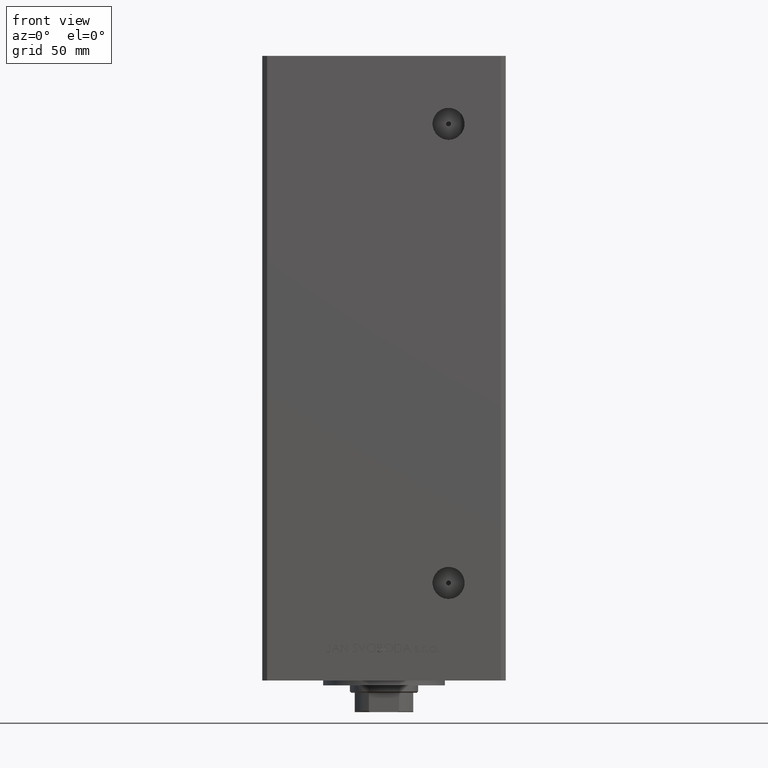
[diagram: clean part render]
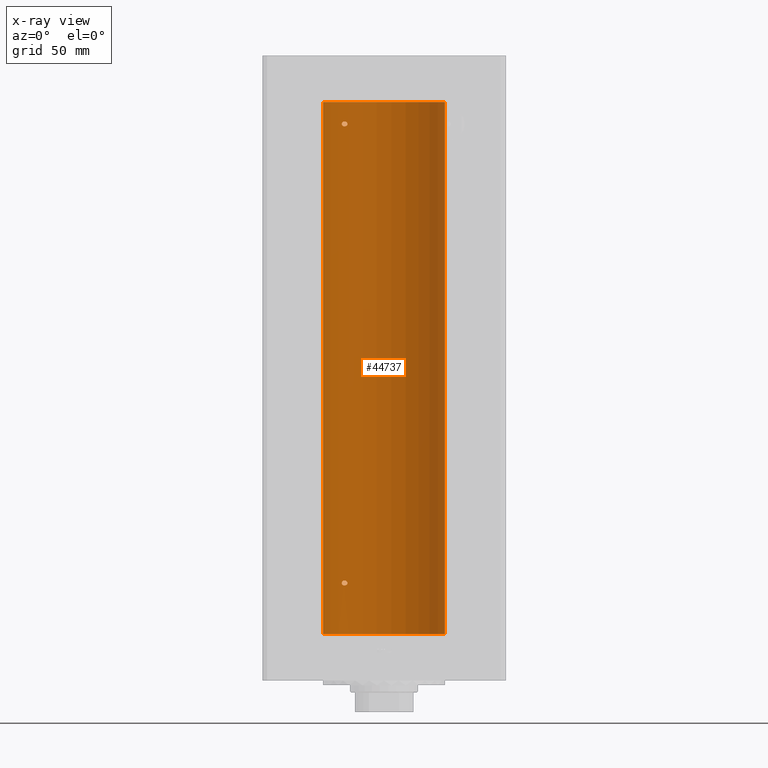
[diagram: x-ray — body ghosted, one internal face saturated and labeled with its STEP entity id]
A machine part, front view, then the same camera in x-ray: the body is ghosted and one INTERNAL B-rep face — a face not visible from any outside direction — is saturated and labeled: STEP entity #44737.
In plain terms, the highlighted cylindrical surface (partial cylindrical patch) has radius 25 mm, axis along (-0, -0, -1).
Its self-contained STEP definition (entity closure, byte-faithful):
#249 = VECTOR ( 'NONE', #34280, 1000.000000000000000 ) ;
#484 = LINE ( 'NONE', #4807, #43488 ) ;
#646 = EDGE_CURVE ( 'NONE', #3768, #21552, #14643, .T. ) ;
#944 = DIRECTION ( 'NONE',  ( -0.000000000000000000, -0.000000000000000000, -1.000000000000000000 ) ) ;
#1129 = ORIENTED_EDGE ( 'NONE', *, *, #35572, .T. ) ;
#1411 = CARTESIAN_POINT ( 'NONE',  ( -14.99999999999999112, 20.00000000000000711, 209.5000000000000000 ) ) ;
#2569 = AXIS2_PLACEMENT_3D ( 'NONE', #16236, #31695, #8898 ) ;
#2715 = CARTESIAN_POINT ( 'NONE',  ( -15.00000000000021316, 19.99999999999998934, 21.08403880362416061 ) ) ;
#2872 = CARTESIAN_POINT ( 'NONE',  ( -14.99999999999999112, 20.00000000000000711, 209.5000000000000000 ) ) ;
#2968 = CARTESIAN_POINT ( 'NONE',  ( -16.46913072925702792, 18.81168496547891777, 210.5057775588113884 ) ) ;
#3132 = CARTESIAN_POINT ( 'NONE',  ( -17.15234217094406333, 18.18812579706696653, 208.8965730437749073 ) ) ;
#3211 = CARTESIAN_POINT ( 'NONE',  ( -17.05007833789892047, 18.28384926940287869, 210.2013739990121337 ) ) ;
#3482 = CARTESIAN_POINT ( 'NONE',  ( -15.34666241858321634, 19.73581294411414078, 20.31212246053760495 ) ) ;
#3768 = VERTEX_POINT ( 'NONE', #8843 ) ;
#3977 = CARTESIAN_POINT ( 'NONE',  ( -17.15234217094410596, 18.18812579706693100, 20.39657304377494640 ) ) ;
#4224 = CARTESIAN_POINT ( 'NONE',  ( -16.46844752485328911, 18.81003400474351039, 20.01154431903891862 ) ) ;
#4807 = CARTESIAN_POINT ( 'NONE',  ( 25.00000000000000000, 3.061616997868383043E-15, 218.5000000000000000 ) ) ;
#5443 = EDGE_CURVE ( 'NONE', #41125, #21438, #10636, .T. ) ;
#5755 = FACE_BOUND ( 'NONE', #21511, .T. ) ;
#6655 = CARTESIAN_POINT ( 'NONE',  ( -15.58164749401199956, 19.55082150006405328, 208.6566780726851391 ) ) ;
#6989 = CARTESIAN_POINT ( 'NONE',  ( -15.58230678163764260, 19.55030131031895380, 21.84373948670293331 ) ) ;
#6990 = CARTESIAN_POINT ( 'NONE',  ( -16.08745393861402917, 19.13692152169251059, 210.4965015099869277 ) ) ;
#7230 = CARTESIAN_POINT ( 'NONE',  ( -17.14593038898733113, 18.19399314418732061, 21.59594488319649130 ) ) ;
#7355 = EDGE_CURVE ( 'NONE', #10063, #19252, #12406, .T. ) ;
#7501 = CARTESIAN_POINT ( 'NONE',  ( -17.34935157289749696, 17.99999999999998579, 20.82899836042580688 ) ) ;
#7731 = CARTESIAN_POINT ( 'NONE',  ( -15.34624284195510135, 19.73614442075936992, 21.68761853185130306 ) ) ;
#7998 = CARTESIAN_POINT ( 'NONE',  ( -15.58164749401203686, 19.55082150006403907, 20.15667807268518885 ) ) ;
#8843 = CARTESIAN_POINT ( 'NONE',  ( 25.00000000000000000, 3.061616997868383043E-15, 218.5000000000000000 ) ) ;
#8898 = DIRECTION ( 'NONE',  ( 1.000000000000000000, 0.000000000000000000, 0.000000000000000000 ) ) ;
#9292 = CARTESIAN_POINT ( 'NONE',  ( 0.000000000000000000, 0.000000000000000000, 218.5000000000000000 ) ) ;
#9802 = B_SPLINE_CURVE_WITH_KNOTS ( 'NONE', 3,
 ( #13353, #2715, #44265, #40451, #37642, #19132, #7731, #6989, #41700, #38635, #18880, #34813, #15074, #22449, #10777, #7230, #37891, #50032, #49782, #26490 ),
 .UNSPECIFIED., .F., .F.,
 ( 4, 2, 2, 2, 2, 2, 2, 2, 2, 4 ),
 ( 0.004032696862986568168, 0.004284699222246932983, 0.004536701581507298665, 0.005040706300028030031, 0.005544711018548761396, 0.006048715737069493628, 0.007056725174110963297, 0.007308727533371326378, 0.007560729892631690326, 0.008064734611152429497 ),
 .UNSPECIFIED. ) ;
#10063 = VERTEX_POINT ( 'NONE', #26613 ) ;
#10290 = CARTESIAN_POINT ( 'NONE',  ( -14.99999999999999112, 20.00000000000000711, 209.5000000000000000 ) ) ;
#10533 = CARTESIAN_POINT ( 'NONE',  ( -15.70535969280552280, 19.45169171760802485, 210.3989607721124173 ) ) ;
#10636 = CIRCLE ( 'NONE', #17934, 25.00000000000000000 ) ;
#10685 = EDGE_CURVE ( 'NONE', #19252, #10063, #9802, .T. ) ;
#10777 = CARTESIAN_POINT ( 'NONE',  ( -17.05007833789895955, 18.28384926940283606, 21.70137399901213371 ) ) ;
#10943 = CARTESIAN_POINT ( 'NONE',  ( -15.10490010356605595, 19.92096840819819903, 209.1037666713224894 ) ) ;
#11431 = CARTESIAN_POINT ( 'NONE',  ( -16.34293146994552259, 18.91921593628409681, 208.4973425906725879 ) ) ;
#11793 = CARTESIAN_POINT ( 'NONE',  ( -17.30269557861145202, 18.04515136187498570, 20.66604208175573376 ) ) ;
#12122 = DIRECTION ( 'NONE',  ( -0.000000000000000000, -0.000000000000000000, -1.000000000000000000 ) ) ;
#12406 = B_SPLINE_CURVE_WITH_KNOTS ( 'NONE', 3,
 ( #41466, #7501, #11793, #3977, #46521, #49556, #38152, #4224, #27256, #42719, #42957, #42215, #7998, #3482, #42464, #35089, #23453, #45771, #41977, #14841 ),
 .UNSPECIFIED., .F., .F.,
 ( 4, 2, 2, 2, 2, 2, 2, 2, 2, 4 ),
 ( 2.011680962688586771E-16, 0.0005040871078734975291, 0.001008174215746794047, 0.001512261323620090565, 0.002016348431493386866, 0.002520435539366683384, 0.003024522647239979902, 0.003528609755113272951, 0.003780653309049920342, 0.004032696862986568168 ),
 .UNSPECIFIED. ) ;
#13345 = FACE_OUTER_BOUND ( 'NONE', #28965, .T. ) ;
#13353 = CARTESIAN_POINT ( 'NONE',  ( -15.00000000000002842, 19.99999999999998224, 20.99999999999998934 ) ) ;
#13446 = EDGE_CURVE ( 'NONE', #31719, #48114, #30686, .T. ) ;
#14643 = CIRCLE ( 'NONE', #2569, 25.00000000000000000 ) ;
#14825 = CARTESIAN_POINT ( 'NONE',  ( -17.30163983552688833, 18.04615713653367948, 209.8360074727278572 ) ) ;
#14841 = CARTESIAN_POINT ( 'NONE',  ( -15.00000000000002842, 19.99999999999998224, 20.99999999999998934 ) ) ;
#14956 = CARTESIAN_POINT ( 'NONE',  ( 0.000000000000000000, 0.000000000000000000, 0.000000000000000000 ) ) ;
#15074 = CARTESIAN_POINT ( 'NONE',  ( -16.72476285461321766, 18.58415905903079945, 21.94494476079569978 ) ) ;
#16236 = CARTESIAN_POINT ( 'NONE',  ( 0.000000000000000000, 0.000000000000000000, 218.5000000000000000 ) ) ;
#16631 = DIRECTION ( 'NONE',  ( -1.000000000000000000, 0.000000000000000000, 0.000000000000000000 ) ) ;
#17128 = FACE_BOUND ( 'NONE', #18551, .T. ) ;
#17934 = AXIS2_PLACEMENT_3D ( 'NONE', #14956, #38763, #19502 ) ;
#18291 = CARTESIAN_POINT ( 'NONE',  ( -16.08757264251632080, 19.13682698743034649, 208.5034427658482059 ) ) ;
#18380 = CARTESIAN_POINT ( 'NONE',  ( -17.14593038898727428, 18.19399314418736324, 210.0959448831964664 ) ) ;
#18436 = ORIENTED_EDGE ( 'NONE', *, *, #34181, .F. ) ;
#18551 = EDGE_LOOP ( 'NONE', ( #44878, #49447 ) ) ;
#18629 = CARTESIAN_POINT ( 'NONE',  ( -17.19010376497220705, 18.15221652163111088, 210.0356701235680248 ) ) ;
#18784 = ORIENTED_EDGE ( 'NONE', *, *, #5443, .F. ) ;
#18880 = CARTESIAN_POINT ( 'NONE',  ( -16.08745393861406825, 19.13692152169247507, 21.99650150998692766 ) ) ;
#19132 = CARTESIAN_POINT ( 'NONE',  ( -15.23594348686703448, 19.82115246225713179, 21.58872193268582151 ) ) ;
#19252 = VERTEX_POINT ( 'NONE', #26945 ) ;
#19502 = DIRECTION ( 'NONE',  ( 1.000000000000000000, 0.000000000000000000, 0.000000000000000000 ) ) ;
#21123 = CARTESIAN_POINT ( 'NONE',  ( -17.34935157289806185, 17.99999999999981526, 209.5000000000001137 ) ) ;
#21438 = VERTEX_POINT ( 'NONE', #32928 ) ;
#21511 = EDGE_LOOP ( 'NONE', ( #43519, #18436 ) ) ;
#21552 = VERTEX_POINT ( 'NONE', #42285 ) ;
#22108 = CARTESIAN_POINT ( 'NONE',  ( -17.05249165747618534, 18.28208333366438509, 208.7922192200363725 ) ) ;
#22323 = EDGE_CURVE ( 'NONE', #3768, #41125, #484, .T. ) ;
#22362 = CARTESIAN_POINT ( 'NONE',  ( -16.83415218046510731, 18.48332662461726983, 208.6343172662811583 ) ) ;
#22449 = CARTESIAN_POINT ( 'NONE',  ( -16.99843849356152248, 18.33190197607051886, 21.74683351457564839 ) ) ;
#22450 = CARTESIAN_POINT ( 'NONE',  ( -16.72476285461317502, 18.58415905903083498, 210.4449447607957211 ) ) ;
#23453 = CARTESIAN_POINT ( 'NONE',  ( -15.06722189748651175, 19.94943357555936458, 20.67598032487887849 ) ) ;
#25744 = CARTESIAN_POINT ( 'NONE',  ( -15.10490800566735103, 19.92096305044241689, 209.8962931740442457 ) ) ;
#25980 = CARTESIAN_POINT ( 'NONE',  ( -15.95796937689560480, 19.24499537862567422, 210.4757730996522298 ) ) ;
#26399 = CARTESIAN_POINT ( 'NONE',  ( -15.70664578139651546, 19.45064696206092947, 208.6005795994921925 ) ) ;
#26490 = CARTESIAN_POINT ( 'NONE',  ( -17.34935157289810093, 17.99999999999978328, 21.00000000000008882 ) ) ;
#26491 = CARTESIAN_POINT ( 'NONE',  ( -17.34935157289746854, 18.00000000000001421, 209.6709736906063029 ) ) ;
#26613 = CARTESIAN_POINT ( 'NONE',  ( -17.34935157289810093, 17.99999999999978328, 21.00000000000008882 ) ) ;
#26945 = CARTESIAN_POINT ( 'NONE',  ( -15.00000000000002842, 19.99999999999998224, 20.99999999999998934 ) ) ;
#27256 = CARTESIAN_POINT ( 'NONE',  ( -16.34293146994555812, 18.91921593628406129, 19.99734259067261277 ) ) ;
#28965 = EDGE_LOOP ( 'NONE', ( #43043, #42256, #1129, #18784 ) ) ;
#29801 = CARTESIAN_POINT ( 'NONE',  ( -15.23594348686699185, 19.82115246225716021, 210.0887219326858144 ) ) ;
#29954 = CARTESIAN_POINT ( 'NONE',  ( -15.34666241858318259, 19.73581294411415854, 208.8121224605376369 ) ) ;
#30686 = B_SPLINE_CURVE_WITH_KNOTS ( 'NONE', 3,
 ( #21123, #36562, #49703, #3132, #22108, #22362, #41359, #37804, #11431, #18291, #33743, #26399, #6655, #29954, #41616, #10943, #41869, #37553, #38299, #2872 ),
 .UNSPECIFIED., .F., .F.,
 ( 4, 2, 2, 2, 2, 2, 2, 2, 2, 4 ),
 ( 2.254873622441466949E-16, 0.0005040871078735091300, 0.001008174215746792746, 0.001512261323620076470, 0.002016348431493359978, 0.002520435539366643485, 0.003024522647239927427, 0.003528609755113210501, 0.003780653309049884347, 0.004032696862986557759 ),
 .UNSPECIFIED. ) ;
#31695 = DIRECTION ( 'NONE',  ( -0.000000000000000000, 0.000000000000000000, 1.000000000000000000 ) ) ;
#31719 = VERTEX_POINT ( 'NONE', #40802 ) ;
#32928 = CARTESIAN_POINT ( 'NONE',  ( -25.00000000000000000, 0.000000000000000000, 0.000000000000000000 ) ) ;
#33743 = CARTESIAN_POINT ( 'NONE',  ( -15.95808436639360117, 19.24489366819300784, 208.5242608788495886 ) ) ;
#34181 = EDGE_CURVE ( 'NONE', #48114, #31719, #34338, .T. ) ;
#34280 = DIRECTION ( 'NONE',  ( -0.000000000000000000, -0.000000000000000000, -1.000000000000000000 ) ) ;
#34338 = B_SPLINE_CURVE_WITH_KNOTS ( 'NONE', 3,
 ( #10290, #40949, #49541, #45750, #25744, #29801, #37643, #45257, #10533, #25980, #6990, #2968, #22450, #37892, #3211, #18380, #18629, #14825, #26491, #41959 ),
 .UNSPECIFIED., .F., .F.,
 ( 4, 2, 2, 2, 2, 2, 2, 2, 2, 4 ),
 ( 0.004032696862986557759, 0.004284699222246954667, 0.004536701581507351574, 0.005040706300028082940, 0.005544711018548810835, 0.006048715737069539598, 0.007056725174110996257, 0.007308727533371349797, 0.007560729892631701601, 0.008064734611152412150 ),
 .UNSPECIFIED. ) ;
#34813 = CARTESIAN_POINT ( 'NONE',  ( -16.46913072925707056, 18.81168496547888580, 22.00577755881141329 ) ) ;
#35089 = CARTESIAN_POINT ( 'NONE',  ( -15.10490010356607904, 19.92096840819818127, 20.60376667132250716 ) ) ;
#35572 = EDGE_CURVE ( 'NONE', #21552, #21438, #42409, .T. ) ;
#36562 = CARTESIAN_POINT ( 'NONE',  ( -17.34935157289747210, 18.00000000000002132, 209.3289983604257998 ) ) ;
#37553 = CARTESIAN_POINT ( 'NONE',  ( -15.01482636753733146, 19.98889854010115741, 209.3312026610076941 ) ) ;
#37642 = CARTESIAN_POINT ( 'NONE',  ( -15.10490800566739011, 19.92096305044238491, 21.39629317404425279 ) ) ;
#37643 = CARTESIAN_POINT ( 'NONE',  ( -15.34624284195505162, 19.73614442075940190, 210.1876185318512853 ) ) ;
#37804 = CARTESIAN_POINT ( 'NONE',  ( -16.46844752485324648, 18.81003400474354947, 208.5115443190389612 ) ) ;
#37857 = CARTESIAN_POINT ( 'NONE',  ( -25.00000000000000000, 0.000000000000000000, 218.5000000000000000 ) ) ;
#37891 = CARTESIAN_POINT ( 'NONE',  ( -17.19010376497224968, 18.15221652163108601, 21.53567012356800703 ) ) ;
#37892 = CARTESIAN_POINT ( 'NONE',  ( -16.99843849356149050, 18.33190197607055794, 210.2468335145757123 ) ) ;
#38152 = CARTESIAN_POINT ( 'NONE',  ( -16.71492528194906768, 18.59135325782697734, 20.08014155834204217 ) ) ;
#38299 = CARTESIAN_POINT ( 'NONE',  ( -15.00000000000018119, 20.00000000000001421, 209.4159474586024032 ) ) ;
#38635 = CARTESIAN_POINT ( 'NONE',  ( -15.95796937689564565, 19.24499537862563869, 21.97577309965217651 ) ) ;
#38763 = DIRECTION ( 'NONE',  ( -0.000000000000000000, 0.000000000000000000, 1.000000000000000000 ) ) ;
#40170 = AXIS2_PLACEMENT_3D ( 'NONE', #9292, #944, #16631 ) ;
#40191 = CYLINDRICAL_SURFACE ( 'NONE', #40170, 25.00000000000000000 ) ;
#40451 = CARTESIAN_POINT ( 'NONE',  ( -15.06763582406801483, 19.94912143246361325, 21.32506993877174395 ) ) ;
#40802 = CARTESIAN_POINT ( 'NONE',  ( -17.34935157289806185, 17.99999999999981526, 209.5000000000001137 ) ) ;
#40949 = CARTESIAN_POINT ( 'NONE',  ( -15.00000000000018474, 20.00000000000002487, 209.5840388036241109 ) ) ;
#41125 = VERTEX_POINT ( 'NONE', #46250 ) ;
#41359 = CARTESIAN_POINT ( 'NONE',  ( -16.71492528194901794, 18.59135325782701642, 208.5801415583420351 ) ) ;
#41466 = CARTESIAN_POINT ( 'NONE',  ( -17.34935157289810093, 17.99999999999978328, 21.00000000000008882 ) ) ;
#41616 = CARTESIAN_POINT ( 'NONE',  ( -15.23538646979298505, 19.82157806413532697, 208.9119998952828041 ) ) ;
#41700 = CARTESIAN_POINT ( 'NONE',  ( -15.70535969280557254, 19.45169171760800708, 21.89896077211249192 ) ) ;
#41869 = CARTESIAN_POINT ( 'NONE',  ( -15.06722189748648866, 19.94943357555938590, 209.1759803248789069 ) ) ;
#41959 = CARTESIAN_POINT ( 'NONE',  ( -17.34935157289806185, 17.99999999999981526, 209.5000000000001137 ) ) ;
#41977 = CARTESIAN_POINT ( 'NONE',  ( -15.00000000000022027, 20.00000000000000355, 20.91594745860243165 ) ) ;
#42215 = CARTESIAN_POINT ( 'NONE',  ( -15.70664578139654566, 19.45064696206090105, 20.10057959949211082 ) ) ;
#42256 = ORIENTED_EDGE ( 'NONE', *, *, #646, .T. ) ;
#42285 = CARTESIAN_POINT ( 'NONE',  ( -25.00000000000000000, 0.000000000000000000, 218.5000000000000000 ) ) ;
#42409 = LINE ( 'NONE', #37857, #249 ) ;
#42464 = CARTESIAN_POINT ( 'NONE',  ( -15.23538646979301170, 19.82157806413531631, 20.41199989528276149 ) ) ;
#42719 = CARTESIAN_POINT ( 'NONE',  ( -16.08757264251635277, 19.13682698743030386, 20.00344276584819525 ) ) ;
#42957 = CARTESIAN_POINT ( 'NONE',  ( -15.95808436639362782, 19.24489366819297942, 20.02426087884952821 ) ) ;
#43043 = ORIENTED_EDGE ( 'NONE', *, *, #22323, .F. ) ;
#43488 = VECTOR ( 'NONE', #12122, 1000.000000000000000 ) ;
#43519 = ORIENTED_EDGE ( 'NONE', *, *, #13446, .F. ) ;
#44265 = CARTESIAN_POINT ( 'NONE',  ( -15.01476641895664876, 19.98894406010705183, 21.16879456340133459 ) ) ;
#44737 = ADVANCED_FACE ( 'NONE', ( #13345, #17128, #5755 ), #40191, .F. ) ;
#44878 = ORIENTED_EDGE ( 'NONE', *, *, #7355, .F. ) ;
#45257 = CARTESIAN_POINT ( 'NONE',  ( -15.58230678163759642, 19.55030131031898577, 210.3437394867029582 ) ) ;
#45750 = CARTESIAN_POINT ( 'NONE',  ( -15.06763582406798818, 19.94912143246363811, 209.8250699387717475 ) ) ;
#45771 = CARTESIAN_POINT ( 'NONE',  ( -15.01482636753736166, 19.98889854010113254, 20.83120266100769769 ) ) ;
#46250 = CARTESIAN_POINT ( 'NONE',  ( 25.00000000000000000, 3.061616997868383043E-15, 0.000000000000000000 ) ) ;
#46521 = CARTESIAN_POINT ( 'NONE',  ( -17.05249165747622442, 18.28208333366434601, 20.29221922003641509 ) ) ;
#48114 = VERTEX_POINT ( 'NONE', #1411 ) ;
#49447 = ORIENTED_EDGE ( 'NONE', *, *, #10685, .F. ) ;
#49541 = CARTESIAN_POINT ( 'NONE',  ( -15.01476641895662567, 19.98894406010707314, 209.6687945634013488 ) ) ;
#49556 = CARTESIAN_POINT ( 'NONE',  ( -16.83415218046515349, 18.48332662461723785, 20.13431726628115115 ) ) ;
#49703 = CARTESIAN_POINT ( 'NONE',  ( -17.30269557861141294, 18.04515136187502478, 209.1660420817557053 ) ) ;
#49782 = CARTESIAN_POINT ( 'NONE',  ( -17.34935157289749696, 17.99999999999998224, 21.17097369060632417 ) ) ;
#50032 = CARTESIAN_POINT ( 'NONE',  ( -17.30163983552693452, 18.04615713653364750, 21.33600747272777909 ) ) ;